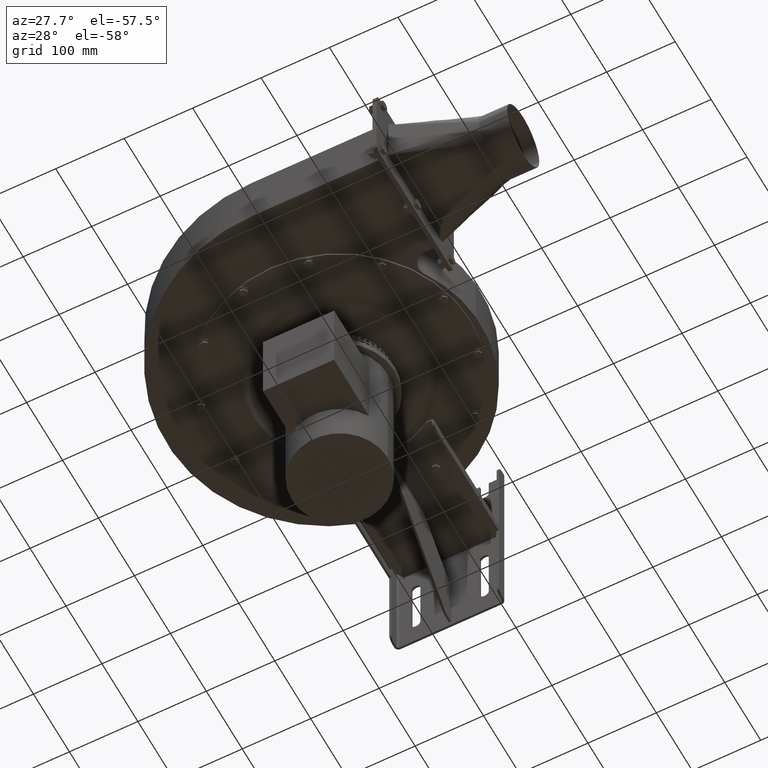
[diagram: clean part render]
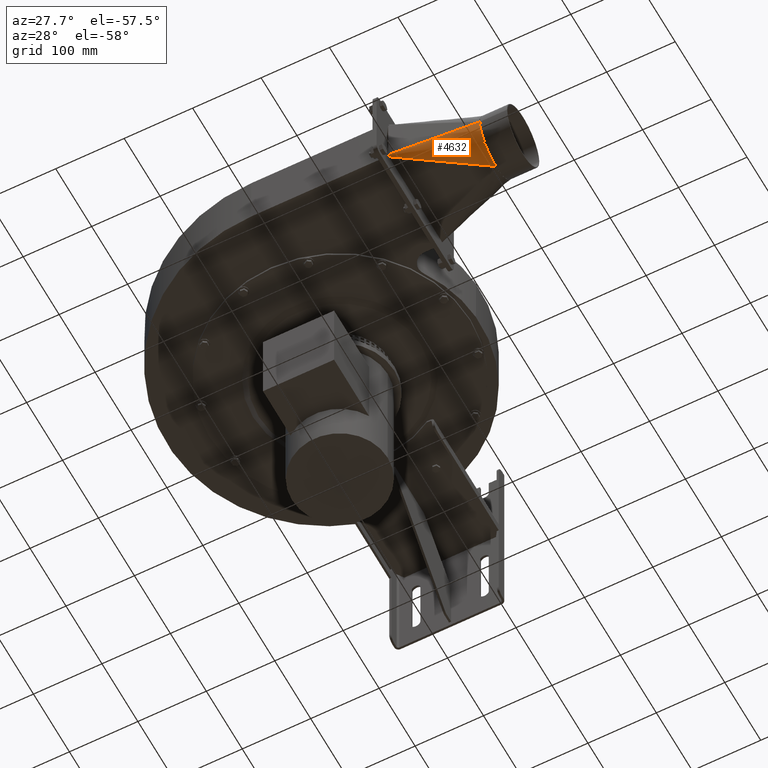
[diagram: same view with one face highlighted and labeled with its STEP entity id]
A machine part, auxiliary view. The second image highlights one B-rep face of the part: STEP entity #4632.
In plain terms, the highlighted face is a freeform B-spline surface patch.
Its self-contained STEP definition (entity closure, byte-faithful):
#4632 = ADVANCED_FACE( '', ( #10331 ), #10332, .T. );
#10331 = FACE_OUTER_BOUND( '', #16926, .T. );
#10332 = B_SPLINE_SURFACE_WITH_KNOTS( '', 3, 3, ( ( #16927, #16928, #16929, #16930, #16931, #16932, #16933, #16934, #16935, #16936 ), ( #16937, #16938, #16939, #16940, #16941, #16942, #16943, #16944, #16945, #16946 ), ( #16947, #16948, #16949, #16950, #16951, #16952, #16953, #16954, #16955, #16956 ), ( #16957, #16958, #16959, #16960, #16961, #16962, #16963, #16964, #16965, #16966 ), ( #16967, #16968, #16969, #16970, #16971, #16972, #16973, #16974, #16975, #16976 ), ( #16977, #16978, #16979, #16980, #16981, #16982, #16983, #16984, #16985, #16986 ), ( #16987, #16988, #16989, #16990, #16991, #16992, #16993, #16994, #16995, #16996 ), ( #16997, #16998, #16999, #17000, #17001, #17002, #17003, #17004, #17005, #17006 ), ( #17007, #17008, #17009, #17010, #17011, #17012, #17013, #17014, #17015, #17016 ), ( #17017, #17018, #17019, #17020, #17021, #17022, #17023, #17024, #17025, #17026 ), ( #17027, #17028, #17029, #17030, #17031, #17032, #17033, #17034, #17035, #17036 ), ( #17037, #17038, #17039, #17040, #17041, #17042, #17043, #17044, #17045, #17046 ), ( #17047, #17048, #17049, #17050, #17051, #17052, #17053, #17054, #17055, #17056 ), ( #17057, #17058, #17059, #17060, #17061, #17062, #17063, #17064, #17065, #17066 ), ( #17067, #17068, #17069, #17070, #17071, #17072, #17073, #17074, #17075, #17076 ), ( #17077, #17078, #17079, #17080, #17081, #17082, #17083, #17084, #17085, #17086 ), ( #17087, #17088, #17089, #17090, #17091, #17092, #17093, #17094, #17095, #17096 ), ( #17097, #17098, #17099, #17100, #17101, #17102, #17103, #17104, #17105, #17106 ), ( #17107, #17108, #17109, #17110, #17111, #17112, #17113, #17114, #17115, #17116 ), ( #17117, #17118, #17119, #17120, #17121, #17122, #17123, #17124, #17125, #17126 ), ( #17127, #17128, #17129, #17130, #17131, #17132, #17133, #17134, #17135, #17136 ) ), .UNSPECIFIED., .F., .F., .F., ( 4, 3, 2, 2, 2, 2, 2, 2, 2, 4 ), ( 4, 3, 3, 4 ), ( -0.000243959590252540, 0.000000000000000, 0.125000000000000, 0.250000000000000, 0.375000000000000, 0.500000000000000, 0.625000000000000, 0.750000000000000, 0.875000000000000, 1.00000000000000 ), ( -0.0101000000000000, 0.000000000000000, 1.00000000000000, 1.01000000000000 ), .UNSPECIFIED. );
#16926 = EDGE_LOOP( '', ( #30209, #30210, #30211, #30212, #30213, #30214, #30215, #30216, #30217, #30218, #30219, #30220, #30221, #30222, #30223, #30224, #30225, #30226, #30227, #30228, #30229 ) );
#16927 = CARTESIAN_POINT( '', ( 75.8080500000000, 35.8579500000000, -1.19180000000000 ) );
#16928 = CARTESIAN_POINT( '', ( 75.7053666666667, 35.7383778565497, -0.794533333333333 ) );
#16929 = CARTESIAN_POINT( '', ( 75.6026833333333, 35.6188057130995, -0.397266666666666 ) );
#16930 = CARTESIAN_POINT( '', ( 75.5000000000000, 35.4992335696493, 0.000000000000000 ) );
#16931 = CARTESIAN_POINT( '', ( 65.3333333333333, 23.6604074854698, 39.3333333333334 ) );
#16932 = CARTESIAN_POINT( '', ( 55.1666666666667, 11.8215814012901, 78.6666666666667 ) );
#16933 = CARTESIAN_POINT( '', ( 45.0000000000000, -0.0172446828894482, 118.000000000000 ) );
#16934 = CARTESIAN_POINT( '', ( 44.8983333333334, -0.135632943731244, 118.393333333333 ) );
#16935 = CARTESIAN_POINT( '', ( 44.7966666666667, -0.254021204573040, 118.786666666667 ) );
#16936 = CARTESIAN_POINT( '', ( 44.6950000000000, -0.372409465414836, 119.180000000000 ) );
#16937 = CARTESIAN_POINT( '', ( 75.8080500000000, 35.8581500000000, -1.19180000000000 ) );
#16938 = CARTESIAN_POINT( '', ( 75.7053666666667, 35.7385963488110, -0.794533333333333 ) );
#16939 = CARTESIAN_POINT( '', ( 75.6026833333333, 35.6190426976219, -0.397266666666666 ) );
#16940 = CARTESIAN_POINT( '', ( 75.5000000000000, 35.4994890464329, 0.000000000000000 ) );
#16941 = CARTESIAN_POINT( '', ( 65.3333333333333, 23.6624938792021, 39.3333333333334 ) );
#16942 = CARTESIAN_POINT( '', ( 55.1666666666667, 11.8254987119712, 78.6666666666667 ) );
#16943 = CARTESIAN_POINT( '', ( 45.0000000000000, -0.0114964552596340, 118.000000000000 ) );
#16944 = CARTESIAN_POINT( '', ( 44.8983333333334, -0.129866406931942, 118.393333333333 ) );
#16945 = CARTESIAN_POINT( '', ( 44.7966666666667, -0.248236358604251, 118.786666666667 ) );
#16946 = CARTESIAN_POINT( '', ( 44.6950000000000, -0.366606310276559, 119.180000000000 ) );
#16947 = CARTESIAN_POINT( '', ( 75.8080500000000, 35.8583500000000, -1.19180000000000 ) );
#16948 = CARTESIAN_POINT( '', ( 75.7053666666667, 35.7388148410721, -0.794533333333333 ) );
#16949 = CARTESIAN_POINT( '', ( 75.6026833333333, 35.6192796821443, -0.397266666666666 ) );
#16950 = CARTESIAN_POINT( '', ( 75.5000000000000, 35.4997445232164, 0.000000000000000 ) );
#16951 = CARTESIAN_POINT( '', ( 65.3333333333333, 23.6645802729344, 39.3333333333334 ) );
#16952 = CARTESIAN_POINT( '', ( 55.1666666666667, 11.8294160226523, 78.6666666666667 ) );
#16953 = CARTESIAN_POINT( '', ( 45.0000000000000, -0.00574822762981975, 118.000000000000 ) );
#16954 = CARTESIAN_POINT( '', ( 44.8983333333334, -0.124099870132641, 118.393333333333 ) );
#16955 = CARTESIAN_POINT( '', ( 44.7966666666667, -0.242451512635461, 118.786666666667 ) );
#16956 = CARTESIAN_POINT( '', ( 44.6950000000000, -0.360803155138282, 119.180000000000 ) );
#16957 = CARTESIAN_POINT( '', ( 75.8080500000000, 35.8585500000000, -1.19180000000000 ) );
#16958 = CARTESIAN_POINT( '', ( 75.7053666666667, 35.7390333333333, -0.794533333333333 ) );
#16959 = CARTESIAN_POINT( '', ( 75.6026833333333, 35.6195166666666, -0.397266666666666 ) );
#16960 = CARTESIAN_POINT( '', ( 75.5000000000000, 35.5000000000000, 0.000000000000000 ) );
#16961 = CARTESIAN_POINT( '', ( 65.3333333333333, 23.6666666666667, 39.3333333333334 ) );
#16962 = CARTESIAN_POINT( '', ( 55.1666666666667, 11.8333333333333, 78.6666666666667 ) );
#16963 = CARTESIAN_POINT( '', ( 45.0000000000000, -5.51091059616309E-015, 118.000000000000 ) );
#16964 = CARTESIAN_POINT( '', ( 44.8983333333334, -0.118333333333339, 118.393333333333 ) );
#16965 = CARTESIAN_POINT( '', ( 44.7966666666667, -0.236666666666672, 118.786666666667 ) );
#16966 = CARTESIAN_POINT( '', ( 44.6950000000000, -0.355000000000005, 119.180000000000 ) );
#16967 = CARTESIAN_POINT( '', ( 75.8080500000000, 35.9610259878229, -1.19180000000000 ) );
#16968 = CARTESIAN_POINT( '', ( 75.7053666666667, 35.8509843848149, -0.794533333333333 ) );
#16969 = CARTESIAN_POINT( '', ( 75.6026833333333, 35.7409427818071, -0.397266666666666 ) );
#16970 = CARTESIAN_POINT( '', ( 75.5000000000000, 35.6309011787991, 0.000000000000000 ) );
#16971 = CARTESIAN_POINT( '', ( 65.3333333333333, 24.7356929601930, 39.3333333333334 ) );
#16972 = CARTESIAN_POINT( '', ( 55.1666666666667, 13.8404847415868, 78.6666666666667 ) );
#16973 = CARTESIAN_POINT( '', ( 45.0000000000000, 2.94527652298063, 118.000000000000 ) );
#16974 = CARTESIAN_POINT( '', ( 44.8983333333334, 2.83632444079457, 118.393333333333 ) );
#16975 = CARTESIAN_POINT( '', ( 44.7966666666667, 2.72737235860851, 118.786666666667 ) );
#16976 = CARTESIAN_POINT( '', ( 44.6950000000000, 2.61842027642244, 119.180000000000 ) );
#16977 = CARTESIAN_POINT( '', ( 75.7979573602072, 36.0634971168466, -1.19180000000000 ) );
#16978 = CARTESIAN_POINT( '', ( 75.6943408482185, 35.9629301282464, -0.794533333333333 ) );
#16979 = CARTESIAN_POINT( '', ( 75.5907243362298, 35.8623631396463, -0.397266666666666 ) );
#16980 = CARTESIAN_POINT( '', ( 75.4871078242411, 35.7617961510462, 0.000000000000000 ) );
#16981 = CARTESIAN_POINT( '', ( 65.2280472313027, 25.8046685668778, 39.3333333333334 ) );
#16982 = CARTESIAN_POINT( '', ( 54.9689866383642, 15.8475409827094, 78.6666666666667 ) );
#16983 = CARTESIAN_POINT( '', ( 44.7099260454257, 5.89041339854095, 118.000000000000 ) );
#16984 = CARTESIAN_POINT( '', ( 44.6073354394963, 5.79084212269927, 118.393333333333 ) );
#16985 = CARTESIAN_POINT( '', ( 44.5047448335670, 5.69127084685758, 118.786666666667 ) );
#16986 = CARTESIAN_POINT( '', ( 44.4021542276376, 5.59169957101590, 119.180000000000 ) );
#16987 = CARTESIAN_POINT( '', ( 75.7579736668475, 36.2645087175147, -1.19180000000000 ) );
#16988 = CARTESIAN_POINT( '', ( 75.6506602103556, 36.1825275240159, -0.794533333333333 ) );
#16989 = CARTESIAN_POINT( '', ( 75.5433467538637, 36.1005463305170, -0.397266666666666 ) );
#16990 = CARTESIAN_POINT( '', ( 75.4360332973718, 36.0185651370183, 0.000000000000000 ) );
#16991 = CARTESIAN_POINT( '', ( 64.8109385952029, 27.9016152856490, 39.3333333333334 ) );
#16992 = CARTESIAN_POINT( '', ( 54.1858438930340, 19.7846654342798, 78.6666666666667 ) );
#16993 = CARTESIAN_POINT( '', ( 43.5607491908650, 11.6677155829106, 118.000000000000 ) );
#16994 = CARTESIAN_POINT( '', ( 43.4544982438433, 11.5865460843969, 118.393333333333 ) );
#16995 = CARTESIAN_POINT( '', ( 43.3482472968216, 11.5053765858832, 118.786666666667 ) );
#16996 = CARTESIAN_POINT( '', ( 43.2419963498000, 11.4242070873695, 119.180000000000 ) );
#16997 = CARTESIAN_POINT( '', ( 75.7280836019562, 36.3630430562976, -1.19180000000000 ) );
#16998 = CARTESIAN_POINT( '', ( 75.6180064710307, 36.2901724764399, -0.794533333333333 ) );
#16999 = CARTESIAN_POINT( '', ( 75.5079293401051, 36.2173018965821, -0.397266666666666 ) );
#17000 = CARTESIAN_POINT( '', ( 75.3978522091796, 36.1444313167244, 0.000000000000000 ) );
#17001 = CARTESIAN_POINT( '', ( 64.4991263749667, 28.9295224199156, 39.3333333333334 ) );
#17002 = CARTESIAN_POINT( '', ( 53.6004005407539, 21.7146135231070, 78.6666666666667 ) );
#17003 = CARTESIAN_POINT( '', ( 42.7016747065410, 14.4997046262983, 118.000000000000 ) );
#17004 = CARTESIAN_POINT( '', ( 42.5926874481990, 14.4275555373302, 118.393333333333 ) );
#17005 = CARTESIAN_POINT( '', ( 42.4837001898568, 14.3554064483621, 118.786666666667 ) );
#17006 = CARTESIAN_POINT( '', ( 42.3747129315147, 14.2832573593940, 119.180000000000 ) );
#17007 = CARTESIAN_POINT( '', ( 75.6496527661496, 36.5523918438104, -1.19180000000000 ) );
#17008 = CARTESIAN_POINT( '', ( 75.5323238177216, 36.4970287001189, -0.794533333333333 ) );
#17009 = CARTESIAN_POINT( '', ( 75.4149948692935, 36.4416655564275, -0.397266666666666 ) );
#17010 = CARTESIAN_POINT( '', ( 75.2976659208655, 36.3863024127360, 0.000000000000000 ) );
#17011 = CARTESIAN_POINT( '', ( 63.6809383537353, 30.9048030373439, 39.3333333333334 ) );
#17012 = CARTESIAN_POINT( '', ( 52.0642107866050, 25.4233036619518, 78.6666666666667 ) );
#17013 = CARTESIAN_POINT( '', ( 40.4474832194747, 19.9418042865597, 118.000000000000 ) );
#17014 = CARTESIAN_POINT( '', ( 40.3313159438034, 19.8869892928058, 118.393333333333 ) );
#17015 = CARTESIAN_POINT( '', ( 40.2151486681322, 19.8321742990519, 118.786666666667 ) );
#17016 = CARTESIAN_POINT( '', ( 40.0989813924609, 19.7773593052980, 119.180000000000 ) );
#17017 = CARTESIAN_POINT( '', ( 75.6011139345911, 36.6432016105182, -1.19180000000000 ) );
#17018 = CARTESIAN_POINT( '', ( 75.4792970224098, 36.5962348564461, -0.794533333333333 ) );
#17019 = CARTESIAN_POINT( '', ( 75.3574801102284, 36.5492681023741, -0.397266666666666 ) );
#17020 = CARTESIAN_POINT( '', ( 75.2356631980471, 36.5023013483020, 0.000000000000000 ) );
#17021 = CARTESIAN_POINT( '', ( 63.1745827840511, 31.8521276777997, 39.3333333333334 ) );
#17022 = CARTESIAN_POINT( '', ( 51.1135023700551, 27.2019540072973, 78.6666666666667 ) );
#17023 = CARTESIAN_POINT( '', ( 39.0524219560591, 22.5517803367951, 118.000000000000 ) );
#17024 = CARTESIAN_POINT( '', ( 38.9318111519191, 22.5052786000901, 118.393333333333 ) );
#17025 = CARTESIAN_POINT( '', ( 38.8112003477792, 22.4587768633850, 118.786666666667 ) );
#17026 = CARTESIAN_POINT( '', ( 38.6905895436392, 22.4122751266800, 119.180000000000 ) );
#17027 = CARTESIAN_POINT( '', ( 75.4872500093730, 36.8136110171594, -1.19180000000000 ) );
#17028 = CARTESIAN_POINT( '', ( 75.3549050899697, 36.7824005393650, -0.794533333333333 ) );
#17029 = CARTESIAN_POINT( '', ( 75.2225601705664, 36.7511900615707, -0.397266666666666 ) );
#17030 = CARTESIAN_POINT( '', ( 75.0902152511631, 36.7199795837764, 0.000000000000000 ) );
#17031 = CARTESIAN_POINT( '', ( 61.9867578844987, 33.6298332675073, 39.3333333333334 ) );
#17032 = CARTESIAN_POINT( '', ( 48.8833005178343, 30.5396869512382, 78.6666666666667 ) );
#17033 = CARTESIAN_POINT( '', ( 35.7798431511699, 27.4495406349691, 118.000000000000 ) );
#17034 = CARTESIAN_POINT( '', ( 35.6488085775033, 27.4186391718064, 118.393333333333 ) );
#17035 = CARTESIAN_POINT( '', ( 35.5177740038367, 27.3877377086438, 118.786666666667 ) );
#17036 = CARTESIAN_POINT( '', ( 35.3867394301700, 27.3568362454811, 119.180000000000 ) );
#17037 = CARTESIAN_POINT( '', ( 75.4219277312233, 36.8932064433843, -1.19180000000000 ) );
#17038 = CARTESIAN_POINT( '', ( 75.2835430286771, 36.8693554626433, -0.794533333333333 ) );
#17039 = CARTESIAN_POINT( '', ( 75.1451583261309, 36.8455044819024, -0.397266666666666 ) );
#17040 = CARTESIAN_POINT( '', ( 75.0067736235847, 36.8216535011615, 0.000000000000000 ) );
#17041 = CARTESIAN_POINT( '', ( 61.3053179259419, 34.4601702594853, 39.3333333333334 ) );
#17042 = CARTESIAN_POINT( '', ( 47.6038622282992, 32.0986870178091, 78.6666666666667 ) );
#17043 = CARTESIAN_POINT( '', ( 33.9024065306564, 29.7372037761329, 118.000000000000 ) );
#17044 = CARTESIAN_POINT( '', ( 33.7653919736799, 29.7135889437162, 118.393333333333 ) );
#17045 = CARTESIAN_POINT( '', ( 33.6283774167035, 29.6899741112994, 118.786666666667 ) );
#17046 = CARTESIAN_POINT( '', ( 33.4913628597271, 29.6663592788826, 119.180000000000 ) );
#17047 = CARTESIAN_POINT( '', ( 75.2770064433842, 37.0381277312233, -1.19180000000000 ) );
#17048 = CARTESIAN_POINT( '', ( 75.1252221293100, 37.0276763620104, -0.794533333333333 ) );
#17049 = CARTESIAN_POINT( '', ( 74.9734378152357, 37.0172249927975, -0.397266666666666 ) );
#17050 = CARTESIAN_POINT( '', ( 74.8216535011614, 37.0067736235847, 0.000000000000000 ) );
#17051 = CARTESIAN_POINT( '', ( 59.7935035928186, 35.9719845926086, 39.3333333333334 ) );
#17052 = CARTESIAN_POINT( '', ( 44.7653536844758, 34.9371955616325, 78.6666666666667 ) );
#17053 = CARTESIAN_POINT( '', ( 29.7372037761329, 33.9024065306564, 118.000000000000 ) );
#17054 = CARTESIAN_POINT( '', ( 29.5869222770495, 33.8920586403466, 118.393333333333 ) );
#17055 = CARTESIAN_POINT( '', ( 29.4366407779660, 33.8817107500368, 118.786666666667 ) );
#17056 = CARTESIAN_POINT( '', ( 29.2863592788826, 33.8713628597271, 119.180000000000 ) );
#17057 = CARTESIAN_POINT( '', ( 75.1974110171593, 37.1034500093731, -1.19180000000000 ) );
#17058 = CARTESIAN_POINT( '', ( 75.0382672060317, 37.0990384233031, -0.794533333333333 ) );
#17059 = CARTESIAN_POINT( '', ( 74.8791233949040, 37.0946268372331, -0.397266666666666 ) );
#17060 = CARTESIAN_POINT( '', ( 74.7199795837764, 37.0902152511631, 0.000000000000000 ) );
#17061 = CARTESIAN_POINT( '', ( 58.9631666008406, 36.6534245511654, 39.3333333333334 ) );
#17062 = CARTESIAN_POINT( '', ( 43.2063536179049, 36.2166338511677, 78.6666666666667 ) );
#17063 = CARTESIAN_POINT( '', ( 27.4495406349691, 35.7798431511699, 118.000000000000 ) );
#17064 = CARTESIAN_POINT( '', ( 27.2919725051398, 35.7754752441699, 118.393333333333 ) );
#17065 = CARTESIAN_POINT( '', ( 27.1344043753104, 35.7711073371700, 118.786666666667 ) );
#17066 = CARTESIAN_POINT( '', ( 26.9768362454811, 35.7667394301700, 119.180000000000 ) );
#17067 = CARTESIAN_POINT( '', ( 75.0270016105182, 37.2173139345911, -1.19180000000000 ) );
#17068 = CARTESIAN_POINT( '', ( 74.8521015231128, 37.2234303557431, -0.794533333333333 ) );
#17069 = CARTESIAN_POINT( '', ( 74.6772014357074, 37.2295467768951, -0.397266666666666 ) );
#17070 = CARTESIAN_POINT( '', ( 74.5023013483020, 37.2356631980471, 0.000000000000000 ) );
#17071 = CARTESIAN_POINT( '', ( 57.1854610111330, 37.8412494507177, 39.3333333333334 ) );
#17072 = CARTESIAN_POINT( '', ( 39.8686206739641, 38.4468357033884, 78.6666666666667 ) );
#17073 = CARTESIAN_POINT( '', ( 22.5517803367951, 39.0524219560591, 118.000000000000 ) );
#17074 = CARTESIAN_POINT( '', ( 22.3786119334234, 39.0584778185858, 118.393333333333 ) );
#17075 = CARTESIAN_POINT( '', ( 22.2054435300518, 39.0645336811125, 118.786666666667 ) );
#17076 = CARTESIAN_POINT( '', ( 22.0322751266800, 39.0705895436392, 119.180000000000 ) );
#17077 = CARTESIAN_POINT( '', ( 74.9361918438104, 37.2658527661496, -1.19180000000000 ) );
#17078 = CARTESIAN_POINT( '', ( 74.7528953667856, 37.2764571510549, -0.794533333333333 ) );
#17079 = CARTESIAN_POINT( '', ( 74.5695988897608, 37.2870615359602, -0.397266666666666 ) );
#17080 = CARTESIAN_POINT( '', ( 74.3863024127360, 37.2976659208655, 0.000000000000000 ) );
#17081 = CARTESIAN_POINT( '', ( 56.2381363706772, 38.3476050204020, 39.3333333333334 ) );
#17082 = CARTESIAN_POINT( '', ( 38.0899703286185, 39.3975441199384, 78.6666666666667 ) );
#17083 = CARTESIAN_POINT( '', ( 19.9418042865597, 40.4474832194747, 118.000000000000 ) );
#17084 = CARTESIAN_POINT( '', ( 19.7603226261392, 40.4579826104701, 118.393333333333 ) );
#17085 = CARTESIAN_POINT( '', ( 19.5788409657186, 40.4684820014655, 118.786666666667 ) );
#17086 = CARTESIAN_POINT( '', ( 19.3973593052980, 40.4789813924609, 119.180000000000 ) );
#17087 = CARTESIAN_POINT( '', ( 74.7468430562977, 37.3442836019562, -1.19180000000000 ) );
#17088 = CARTESIAN_POINT( '', ( 74.5460391431066, 37.3621398043640, -0.794533333333333 ) );
#17089 = CARTESIAN_POINT( '', ( 74.3452352299155, 37.3799960067718, -0.397266666666666 ) );
#17090 = CARTESIAN_POINT( '', ( 74.1444313167244, 37.3978522091796, 0.000000000000000 ) );
#17091 = CARTESIAN_POINT( '', ( 54.2628557532490, 39.1657930416334, 39.3333333333334 ) );
#17092 = CARTESIAN_POINT( '', ( 34.3812801897736, 40.9337338740872, 78.6666666666667 ) );
#17093 = CARTESIAN_POINT( '', ( 14.4997046262983, 42.7016747065410, 118.000000000000 ) );
#17094 = CARTESIAN_POINT( '', ( 14.3008888706636, 42.7193541148656, 118.393333333333 ) );
#17095 = CARTESIAN_POINT( '', ( 14.1020731150288, 42.7370335231901, 118.786666666667 ) );
#17096 = CARTESIAN_POINT( '', ( 13.9032573593940, 42.7547129315147, 119.180000000000 ) );
#17097 = CARTESIAN_POINT( '', ( 74.6483087175147, 37.3741736668475, -1.19180000000000 ) );
#17098 = CARTESIAN_POINT( '', ( 74.4383941906826, 37.3947935436889, -0.794533333333333 ) );
#17099 = CARTESIAN_POINT( '', ( 74.2284796638504, 37.4154134205303, -0.397266666666666 ) );
#17100 = CARTESIAN_POINT( '', ( 74.0185651370182, 37.4360332973718, 0.000000000000000 ) );
#17101 = CARTESIAN_POINT( '', ( 53.2349486189824, 39.4776052618695, 39.3333333333334 ) );
#17102 = CARTESIAN_POINT( '', ( 32.4513321009465, 41.5191772263673, 78.6666666666667 ) );
#17103 = CARTESIAN_POINT( '', ( 11.6677155829106, 43.5607491908650, 118.000000000000 ) );
#17104 = CARTESIAN_POINT( '', ( 11.4598794177302, 43.5811649105100, 118.393333333333 ) );
#17105 = CARTESIAN_POINT( '', ( 11.2520432525499, 43.6015806301550, 118.786666666667 ) );
#17106 = CARTESIAN_POINT( '', ( 11.0442070873695, 43.6219963498000, 119.180000000000 ) );
#17107 = CARTESIAN_POINT( '', ( 74.4472971168465, 37.4141573602071, -1.19180000000000 ) );
#17108 = CARTESIAN_POINT( '', ( 74.2187967949131, 37.4384741815518, -0.794533333333333 ) );
#17109 = CARTESIAN_POINT( '', ( 73.9902964729797, 37.4627910028965, -0.397266666666666 ) );
#17110 = CARTESIAN_POINT( '', ( 73.7617961510463, 37.4871078242411, 0.000000000000000 ) );
#17111 = CARTESIAN_POINT( '', ( 51.1380019002112, 39.8947138979693, 39.3333333333334 ) );
#17112 = CARTESIAN_POINT( '', ( 28.5142076493761, 42.3023199716975, 78.6666666666667 ) );
#17113 = CARTESIAN_POINT( '', ( 5.89041339854098, 44.7099260454257, 118.000000000000 ) );
#17114 = CARTESIAN_POINT( '', ( 5.66417545603263, 44.7340021061630, 118.393333333333 ) );
#17115 = CARTESIAN_POINT( '', ( 5.43793751352428, 44.7580781669002, 118.786666666667 ) );
#17116 = CARTESIAN_POINT( '', ( 5.21169957101593, 44.7821542276376, 119.180000000000 ) );
#17117 = CARTESIAN_POINT( '', ( 74.3448259878229, 37.4242500000000, -1.19180000000000 ) );
#17118 = CARTESIAN_POINT( '', ( 74.1068510514816, 37.4495000000000, -0.794533333333333 ) );
#17119 = CARTESIAN_POINT( '', ( 73.8688761151403, 37.4747500000000, -0.397266666666666 ) );
#17120 = CARTESIAN_POINT( '', ( 73.6309011787991, 37.5000000000000, 0.000000000000000 ) );
#17121 = CARTESIAN_POINT( '', ( 50.0690262935263, 40.0000000000000, 39.3333333333334 ) );
#17122 = CARTESIAN_POINT( '', ( 26.5071514082535, 42.5000000000000, 78.6666666666667 ) );
#17123 = CARTESIAN_POINT( '', ( 2.94527652298059, 45.0000000000000, 118.000000000000 ) );
#17124 = CARTESIAN_POINT( '', ( 2.70965777412786, 45.0250000000000, 118.393333333333 ) );
#17125 = CARTESIAN_POINT( '', ( 2.47403902527514, 45.0500000000000, 118.786666666667 ) );
#17126 = CARTESIAN_POINT( '', ( 2.23842027642241, 45.0750000000000, 119.180000000000 ) );
#17127 = CARTESIAN_POINT( '', ( 74.2423500000000, 37.4242500000000, -1.19180000000000 ) );
#17128 = CARTESIAN_POINT( '', ( 73.9949000000000, 37.4495000000000, -0.794533333333333 ) );
#17129 = CARTESIAN_POINT( '', ( 73.7474500000000, 37.4747500000000, -0.397266666666666 ) );
#17130 = CARTESIAN_POINT( '', ( 73.5000000000000, 37.5000000000000, 0.000000000000000 ) );
#17131 = CARTESIAN_POINT( '', ( 49.0000000000000, 40.0000000000000, 39.3333333333334 ) );
#17132 = CARTESIAN_POINT( '', ( 24.5000000000000, 42.5000000000000, 78.6666666666667 ) );
#17133 = CARTESIAN_POINT( '', ( 8.23993651088983E-015, 45.0000000000000, 118.000000000000 ) );
#17134 = CARTESIAN_POINT( '', ( -0.244999999999991, 45.0250000000000, 118.393333333333 ) );
#17135 = CARTESIAN_POINT( '', ( -0.489999999999992, 45.0500000000000, 118.786666666667 ) );
#17136 = CARTESIAN_POINT( '', ( -0.734999999999991, 45.0750000000000, 119.180000000000 ) );
#30209 = ORIENTED_EDGE( '', *, *, #37626, .F. );
#30210 = ORIENTED_EDGE( '', *, *, #39318, .F. );
#30211 = ORIENTED_EDGE( '', *, *, #37898, .T. );
#30212 = ORIENTED_EDGE( '', *, *, #39828, .T. );
#30213 = ORIENTED_EDGE( '', *, *, #35496, .T. );
#30214 = ORIENTED_EDGE( '', *, *, #39237, .F. );
#30215 = ORIENTED_EDGE( '', *, *, #39829, .F. );
#30216 = ORIENTED_EDGE( '', *, *, #39001, .F. );
#30217 = ORIENTED_EDGE( '', *, *, #39817, .T. );
#30218 = ORIENTED_EDGE( '', *, *, #39409, .F. );
#30219 = ORIENTED_EDGE( '', *, *, #38927, .F. );
#30220 = ORIENTED_EDGE( '', *, *, #39723, .T. );
#30221 = ORIENTED_EDGE( '', *, *, #39830, .F. );
#30222 = ORIENTED_EDGE( '', *, *, #39382, .F. );
#30223 = ORIENTED_EDGE( '', *, *, #39705, .T. );
#30224 = ORIENTED_EDGE( '', *, *, #38016, .F. );
#30225 = ORIENTED_EDGE( '', *, *, #36185, .F. );
#30226 = ORIENTED_EDGE( '', *, *, #37134, .T. );
#30227 = ORIENTED_EDGE( '', *, *, #39073, .F. );
#30228 = ORIENTED_EDGE( '', *, *, #39171, .F. );
#30229 = ORIENTED_EDGE( '', *, *, #39831, .T. );
#35496 = EDGE_CURVE( '', #42040, #42044, #42046, .T. );
#36185 = EDGE_CURVE( '', #43215, #43211, #43217, .T. );
#37134 = EDGE_CURVE( '', #43215, #44849, #44851, .T. );
#37626 = EDGE_CURVE( '', #45628, #45630, #45631, .T. );
#37898 = EDGE_CURVE( '', #46025, #41999, #46028, .T. );
#38016 = EDGE_CURVE( '', #43211, #46201, #46204, .T. );
#38927 = EDGE_CURVE( '', #47548, #47544, #47550, .T. );
#39001 = EDGE_CURVE( '', #47643, #47639, #47645, .T. );
#39073 = EDGE_CURVE( '', #47740, #44849, #47742, .T. );
#39171 = EDGE_CURVE( '', #47865, #47740, #47867, .T. );
#39237 = EDGE_CURVE( '', #47947, #42044, #47949, .T. );
#39318 = EDGE_CURVE( '', #46025, #45628, #48051, .T. );
#39382 = EDGE_CURVE( '', #48126, #48122, #48128, .T. );
#39409 = EDGE_CURVE( '', #47544, #48155, #48158, .T. );
#39705 = EDGE_CURVE( '', #48126, #46201, #48515, .T. );
#39723 = EDGE_CURVE( '', #47548, #48533, #48535, .T. );
#39817 = EDGE_CURVE( '', #47643, #48155, #48643, .T. );
#39828 = EDGE_CURVE( '', #41999, #42040, #48655, .T. );
#39829 = EDGE_CURVE( '', #47639, #47947, #48656, .T. );
#39830 = EDGE_CURVE( '', #48122, #48533, #48657, .T. );
#39831 = EDGE_CURVE( '', #47865, #45630, #48658, .T. );
#41999 = VERTEX_POINT( '', #51444 );
#42040 = VERTEX_POINT( '', #51502 );
#42044 = VERTEX_POINT( '', #51510 );
#42046 = B_SPLINE_CURVE_WITH_KNOTS( '', 3, ( #51513, #51514, #51515, #51516 ), .UNSPECIFIED., .F., .F., ( 4, 4 ), ( 0.000000000000000, 1.00000000000000 ), .UNSPECIFIED. );
#43211 = VERTEX_POINT( '', #53651 );
#43215 = VERTEX_POINT( '', #53659 );
#43217 = B_SPLINE_CURVE_WITH_KNOTS( '', 3, ( #53662, #53663, #53664, #53665 ), .UNSPECIFIED., .F., .F., ( 4, 4 ), ( 0.000000000000000, 1.00000000000000 ), .UNSPECIFIED. );
#44849 = VERTEX_POINT( '', #56112 );
#44851 = B_SPLINE_CURVE_WITH_KNOTS( '', 3, ( #56115, #56116, #56117, #56118 ), .UNSPECIFIED., .F., .F., ( 4, 4 ), ( 0.000000000000000, 1.00000000000000 ), .UNSPECIFIED. );
#45628 = VERTEX_POINT( '', #57422 );
#45630 = VERTEX_POINT( '', #57425 );
#45631 = B_SPLINE_CURVE_WITH_KNOTS( '', 1, ( #57426, #57427 ), .UNSPECIFIED., .F., .F., ( 2, 2 ), ( 0.00200288157160666, 1.00000000000000 ), .UNSPECIFIED. );
#46025 = VERTEX_POINT( '', #58089 );
#46028 = B_SPLINE_CURVE_WITH_KNOTS( '', 3, ( #58102, #58103, #58104, #58105, #58106, #58107, #58108, #58109, #58110, #58111 ), .UNSPECIFIED., .F., .F., ( 4, 2, 2, 2, 4 ), ( 0.000000000000000, 0.250000000000000, 0.500000000000000, 0.750000000000000, 1.00000000000000 ), .UNSPECIFIED. );
#46201 = VERTEX_POINT( '', #58421 );
#46204 = B_SPLINE_CURVE_WITH_KNOTS( '', 3, ( #58428, #58429, #58430, #58431 ), .UNSPECIFIED., .F., .F., ( 4, 4 ), ( 0.000000000000000, 1.00000000000000 ), .UNSPECIFIED. );
#47544 = VERTEX_POINT( '', #60642 );
#47548 = VERTEX_POINT( '', #60650 );
#47550 = B_SPLINE_CURVE_WITH_KNOTS( '', 3, ( #60653, #60654, #60655, #60656 ), .UNSPECIFIED., .F., .F., ( 4, 4 ), ( 0.000000000000000, 1.00000000000000 ), .UNSPECIFIED. );
#47639 = VERTEX_POINT( '', #60797 );
#47643 = VERTEX_POINT( '', #60805 );
#47645 = B_SPLINE_CURVE_WITH_KNOTS( '', 3, ( #60808, #60809, #60810, #60811 ), .UNSPECIFIED., .F., .F., ( 4, 4 ), ( 3.87391259067712E-006, 1.00000000000000 ), .UNSPECIFIED. );
#47740 = VERTEX_POINT( '', #61042 );
#47742 = B_SPLINE_CURVE_WITH_KNOTS( '', 3, ( #61045, #61046, #61047, #61048 ), .UNSPECIFIED., .F., .F., ( 4, 4 ), ( 0.000000000000000, 1.00000000000000 ), .UNSPECIFIED. );
#47865 = VERTEX_POINT( '', #61251 );
#47867 = B_SPLINE_CURVE_WITH_KNOTS( '', 3, ( #61254, #61255, #61256, #61257 ), .UNSPECIFIED., .F., .F., ( 4, 4 ), ( 0.000000000000000, 1.00000000000000 ), .UNSPECIFIED. );
#47947 = VERTEX_POINT( '', #61385 );
#47949 = B_SPLINE_CURVE_WITH_KNOTS( '', 3, ( #61388, #61389, #61390, #61391 ), .UNSPECIFIED., .F., .F., ( 4, 4 ), ( 0.000000000000000, 1.00000000000000 ), .UNSPECIFIED. );
#48051 = B_SPLINE_CURVE_WITH_KNOTS( '', 3, ( #61608, #61609, #61610, #61611 ), .UNSPECIFIED., .F., .F., ( 4, 4 ), ( 0.000000000000000, 1.00000000000000 ), .UNSPECIFIED. );
#48122 = VERTEX_POINT( '', #61776 );
#48126 = VERTEX_POINT( '', #61784 );
#48128 = B_SPLINE_CURVE_WITH_KNOTS( '', 3, ( #61787, #61788, #61789, #61790 ), .UNSPECIFIED., .F., .F., ( 4, 4 ), ( 0.000000000000000, 1.00000000000000 ), .UNSPECIFIED. );
#48155 = VERTEX_POINT( '', #61825 );
#48158 = B_SPLINE_CURVE_WITH_KNOTS( '', 3, ( #61832, #61833, #61834, #61835 ), .UNSPECIFIED., .F., .F., ( 4, 4 ), ( 0.000000000000000, 1.00000000000000 ), .UNSPECIFIED. );
#48515 = B_SPLINE_CURVE_WITH_KNOTS( '', 3, ( #62454, #62455, #62456, #62457, #62458, #62459 ), .UNSPECIFIED., .F., .F., ( 4, 2, 4 ), ( 0.000000000000000, 0.654425162113925, 1.00000000000000 ), .UNSPECIFIED. );
#48533 = VERTEX_POINT( '', #62487 );
#48535 = B_SPLINE_CURVE_WITH_KNOTS( '', 3, ( #62510, #62511, #62512, #62513, #62514, #62515 ), .UNSPECIFIED., .F., .F., ( 4, 2, 4 ), ( 0.000000000000000, 0.357254318589830, 1.00000000000000 ), .UNSPECIFIED. );
#48643 = B_SPLINE_CURVE_WITH_KNOTS( '', 3, ( #63033, #63034, #63035, #63036 ), .UNSPECIFIED., .F., .F., ( 4, 4 ), ( 0.000000000000000, 1.00000000000000 ), .UNSPECIFIED. );
#48655 = B_SPLINE_CURVE_WITH_KNOTS( '', 3, ( #63052, #63053, #63054, #63055 ), .UNSPECIFIED., .F., .F., ( 4, 4 ), ( 0.000000000000000, 1.00000000000000 ), .UNSPECIFIED. );
#48656 = B_SPLINE_CURVE_WITH_KNOTS( '', 3, ( #63056, #63057, #63058, #63059 ), .UNSPECIFIED., .F., .F., ( 4, 4 ), ( 0.000000000000000, 1.00000000000000 ), .UNSPECIFIED. );
#48657 = B_SPLINE_CURVE_WITH_KNOTS( '', 3, ( #63060, #63061, #63062, #63063 ), .UNSPECIFIED., .F., .F., ( 4, 4 ), ( 0.000000000000000, 1.00000000000000 ), .UNSPECIFIED. );
#48658 = B_SPLINE_CURVE_WITH_KNOTS( '', 3, ( #63064, #63065, #63066, #63067 ), .UNSPECIFIED., .F., .F., ( 4, 4 ), ( 0.000000000000000, 1.00000000000000 ), .UNSPECIFIED. );
#51444 = CARTESIAN_POINT( '', ( 73.5000000015708, 37.5000000000000, 0.000000000000000 ) );
#51502 = CARTESIAN_POINT( '', ( -1.11022302462516E-013, 45.0000000000000, 118.000000000000 ) );
#51510 = CARTESIAN_POINT( '', ( 6.06152418726983, 44.5897515462742, 118.000330781699 ) );
#51513 = CARTESIAN_POINT( '', ( 8.23993651088983E-015, 45.0000000000000, 118.000000000000 ) );
#51514 = CARTESIAN_POINT( '', ( 2.02668906219893, 45.0000070080869, 118.000110260567 ) );
#51515 = CARTESIAN_POINT( '', ( 4.05331744190193, 44.8626540198039, 118.000220521135 ) );
#51516 = CARTESIAN_POINT( '', ( 6.06152424724917, 44.5897515381235, 118.000330781702 ) );
#53651 = CARTESIAN_POINT( '', ( 40.5234303277431, 20.5730379237594, 116.634377183575 ) );
#53659 = CARTESIAN_POINT( '', ( 40.6060674046547, 19.3942517144081, 118.000020006995 ) );
#53662 = CARTESIAN_POINT( '', ( 40.6060674079299, 19.3942516627496, 118.000020065994 ) );
#53663 = CARTESIAN_POINT( '', ( 40.5807964034558, 19.7928321477027, 117.544805730824 ) );
#53664 = CARTESIAN_POINT( '', ( 40.5531882351881, 20.1857713702443, 117.089591438998 ) );
#53665 = CARTESIAN_POINT( '', ( 40.5234303277431, 20.5730379237594, 116.634377183575 ) );
#56112 = CARTESIAN_POINT( '', ( 44.2354292737459, 8.26044475952630, 117.999672470317 ) );
#56115 = CARTESIAN_POINT( '', ( 40.6060674028758, 19.3942516690988, 118.000020071566 ) );
#56116 = CARTESIAN_POINT( '', ( 42.2934292802643, 15.8620021885156, 117.999904204482 ) );
#56117 = CARTESIAN_POINT( '', ( 43.5169441510643, 12.1084937201712, 117.999788337399 ) );
#56118 = CARTESIAN_POINT( '', ( 44.2354292842850, 8.26044470308098, 117.999672470316 ) );
#57422 = CARTESIAN_POINT( '', ( 75.4389121125142, 35.4288977063680, 0.236340023715806 ) );
#57425 = CARTESIAN_POINT( '', ( 45.0000000000000, -5.51091059616309E-015, 118.000000000000 ) );
#57426 = CARTESIAN_POINT( '', ( 75.4389121120660, 35.4288977042080, 0.236340025449613 ) );
#57427 = CARTESIAN_POINT( '', ( 45.0000000000000, -1.38777878078145E-014, 118.000000000000 ) );
#58089 = CARTESIAN_POINT( '', ( 75.4885494582934, 35.7137721619352, -5.02570229088494E-005 ) );
#58102 = CARTESIAN_POINT( '', ( 75.4885494643967, 35.7137722423121, -5.03080854511404E-005 ) );
#58103 = CARTESIAN_POINT( '', ( 75.4624785633811, 35.9563229362721, -4.61157449968786E-005 ) );
#58104 = CARTESIAN_POINT( '', ( 75.3915485287175, 36.1939806566611, -4.19234045426170E-005 ) );
#58105 = CARTESIAN_POINT( '', ( 75.1692614010284, 36.6283020949909, -3.35387236340935E-005 ) );
#58106 = CARTESIAN_POINT( '', ( 75.0180036690720, 36.8248580133226, -2.93463831798319E-005 ) );
#58107 = CARTESIAN_POINT( '', ( 74.6550154763528, 37.1508774815604, -2.09617022713085E-005 ) );
#58108 = CARTESIAN_POINT( '', ( 74.4434437216493, 37.2803047164518, -1.67693618170468E-005 ) );
#58109 = CARTESIAN_POINT( '', ( 73.9878317708968, 37.4548594166118, -8.38468090852339E-006 ) );
#58110 = CARTESIAN_POINT( '', ( 73.7439573996654, 37.4999997335377, -4.19234045426170E-006 ) );
#58111 = CARTESIAN_POINT( '', ( 73.5000000000000, 37.5000000000000, 0.000000000000000 ) );
#58421 = CARTESIAN_POINT( '', ( 39.5682243328835, 21.4322249969381, 117.999992798307 ) );
#58428 = CARTESIAN_POINT( '', ( 40.5234303277525, 20.5730379237480, 116.634377183565 ) );
#58429 = CARTESIAN_POINT( '', ( 40.2115664119717, 20.8579285849246, 117.089582340431 ) );
#58430 = CARTESIAN_POINT( '', ( 39.8931937257629, 21.1443901712686, 117.544787543605 ) );
#58431 = CARTESIAN_POINT( '', ( 39.5682243631742, 21.4322249394340, 117.999992800611 ) );
#60642 = CARTESIAN_POINT( '', ( 21.2202740957192, 39.9880910587186, 116.584437199208 ) );
#60650 = CARTESIAN_POINT( '', ( 21.3472860965489, 39.6141104507063, 118.000000043744 ) );
#60653 = CARTESIAN_POINT( '', ( 21.3472861020647, 39.6141104345606, 118.000000102937 ) );
#60654 = CARTESIAN_POINT( '', ( 21.3033177327022, 39.7428174789298, 117.528145791296 ) );
#60655 = CARTESIAN_POINT( '', ( 21.2609493172713, 39.8674576294753, 117.056291493892 ) );
#60656 = CARTESIAN_POINT( '', ( 21.2202740957193, 39.9880910587186, 116.584437199208 ) );
#60797 = CARTESIAN_POINT( '', ( 8.01273461550605, 44.2815402659253, 117.984213310758 ) );
#60805 = CARTESIAN_POINT( '', ( 8.35374001828915, 44.2178006481376, 118.000140892069 ) );
#60808 = CARTESIAN_POINT( '', ( 8.35374001828915, 44.2178006481376, 118.000140892069 ) );
#60809 = CARTESIAN_POINT( '', ( 8.24014240683156, 44.2395119330223, 117.994831718545 ) );
#60810 = CARTESIAN_POINT( '', ( 8.12647270302266, 44.2607585325992, 117.989522545023 ) );
#60811 = CARTESIAN_POINT( '', ( 8.01273461946685, 44.2815402625918, 117.984213371502 ) );
#61042 = CARTESIAN_POINT( '', ( 44.8737050678104, 7.42954283247696, 116.376659750363 ) );
#61045 = CARTESIAN_POINT( '', ( 44.8737050678170, 7.42954283246230, 116.376659750349 ) );
#61046 = CARTESIAN_POINT( '', ( 44.6674633606437, 7.70207259306481, 116.917663937436 ) );
#61047 = CARTESIAN_POINT( '', ( 44.4547740398818, 7.97910488376268, 117.458668170208 ) );
#61048 = CARTESIAN_POINT( '', ( 44.2354292844146, 8.26044469904174, 117.999672472341 ) );
#61251 = CARTESIAN_POINT( '', ( 44.6336600923063, 5.73225701559487, 117.998657592672 ) );
#61254 = CARTESIAN_POINT( '', ( 44.6336600829702, 5.73225695312683, 117.998657651683 ) );
#61255 = CARTESIAN_POINT( '', ( 44.7191979589468, 6.30459516722672, 117.457991597685 ) );
#61256 = CARTESIAN_POINT( '', ( 44.7991236561146, 6.87040671096176, 116.917325634358 ) );
#61257 = CARTESIAN_POINT( '', ( 44.8737050678104, 7.42954283247696, 116.376659750363 ) );
#61385 = CARTESIAN_POINT( '', ( 7.93349998248473, 44.3452984817130, 116.652349031476 ) );
#61388 = CARTESIAN_POINT( '', ( 7.93349998248470, 44.3452984817130, 116.652349031476 ) );
#61389 = CARTESIAN_POINT( '', ( 7.31424714663686, 44.4307471718968, 117.101676239247 ) );
#61390 = CARTESIAN_POINT( '', ( 6.69022439107683, 44.5122857078396, 117.551003488212 ) );
#61391 = CARTESIAN_POINT( '', ( 6.06152424724916, 44.5897515381234, 118.000330781702 ) );
#61608 = CARTESIAN_POINT( '', ( 75.4885494582934, 35.7137721619352, -5.02570229119634E-005 ) );
#61609 = CARTESIAN_POINT( '', ( 75.4756470040099, 35.6221562874818, 0.0787459263674748 ) );
#61610 = CARTESIAN_POINT( '', ( 75.4592792286009, 35.5270687253741, 0.157542656560299 ) );
#61611 = CARTESIAN_POINT( '', ( 75.4389121120660, 35.4288977042080, 0.236340025449587 ) );
#61776 = CARTESIAN_POINT( '', ( 32.3964280790658, 31.7853877431550, 116.671645642133 ) );
#61784 = CARTESIAN_POINT( '', ( 32.4784584781983, 31.1471929039194, 117.999994021375 ) );
#61787 = CARTESIAN_POINT( '', ( 32.4784584818792, 31.1471928750701, 117.999994080375 ) );
#61788 = CARTESIAN_POINT( '', ( 32.4508339691955, 31.3637007177048, 117.557211255398 ) );
#61789 = CARTESIAN_POINT( '', ( 32.4234625328144, 31.5764252395695, 117.114428444736 ) );
#61790 = CARTESIAN_POINT( '', ( 32.3964280790658, 31.7853877431550, 116.671645642133 ) );
#61825 = CARTESIAN_POINT( '', ( 19.5158778145308, 40.5477522295542, 117.999994810632 ) );
#61832 = CARTESIAN_POINT( '', ( 21.2202740957331, 39.9880910587120, 116.584437199205 ) );
#61833 = CARTESIAN_POINT( '', ( 20.6584839526420, 40.1771985765369, 117.056289683482 ) );
#61834 = CARTESIAN_POINT( '', ( 20.0903385621825, 40.3638266031183, 117.528142219664 ) );
#61835 = CARTESIAN_POINT( '', ( 19.5158778691754, 40.5477522032502, 117.999994810630 ) );
#62454 = CARTESIAN_POINT( '', ( 32.4784584657040, 31.1471928919384, 117.999994080374 ) );
#62455 = CARTESIAN_POINT( '', ( 34.2997397727641, 29.2478888203507, 117.999994080374 ) );
#62456 = CARTESIAN_POINT( '', ( 35.9541860848011, 27.1886214122718, 117.999994080374 ) );
#62457 = CARTESIAN_POINT( '', ( 38.1881288594177, 23.8452897823156, 117.999994080374 ) );
#62458 = CARTESIAN_POINT( '', ( 38.9064279972553, 22.6540599573890, 117.999994080374 ) );
#62459 = CARTESIAN_POINT( '', ( 39.5682239647238, 21.4322247975278, 117.999994080374 ) );
#62487 = CARTESIAN_POINT( '', ( 30.9875403562318, 32.6308017785623, 117.999994232423 ) );
#62510 = CARTESIAN_POINT( '', ( 21.3472860910833, 39.6141104405636, 118.000000102552 ) );
#62511 = CARTESIAN_POINT( '', ( 22.5988650657594, 38.9396672781587, 118.000000102552 ) );
#62512 = CARTESIAN_POINT( '', ( 23.8185320815267, 38.2060054720934, 118.000000102552 ) );
#62513 = CARTESIAN_POINT( '', ( 27.1274588032686, 35.9950513221851, 118.000000102552 ) );
#62514 = CARTESIAN_POINT( '', ( 29.1326586047487, 34.3920838577671, 118.000000102552 ) );
#62515 = CARTESIAN_POINT( '', ( 30.9875392137234, 32.6308005753394, 118.000000102552 ) );
#63033 = CARTESIAN_POINT( '', ( 8.35374133868471, 44.2178003960373, 118.000140948333 ) );
#63034 = CARTESIAN_POINT( '', ( 12.2133657865892, 43.4887304866368, 118.000092235766 ) );
#63035 = CARTESIAN_POINT( '', ( 15.9767067194828, 42.2514080730425, 118.000043523199 ) );
#63036 = CARTESIAN_POINT( '', ( 19.5158778691755, 40.5477522032498, 117.999994810631 ) );
#63052 = CARTESIAN_POINT( '', ( 73.5000000000000, 37.5000000000000, 1.84227633148737E-015 ) );
#63053 = CARTESIAN_POINT( '', ( 49.0000000000000, 40.0000000000000, 39.3333333333334 ) );
#63054 = CARTESIAN_POINT( '', ( 24.5000000000000, 42.5000000000000, 78.6666666666667 ) );
#63055 = CARTESIAN_POINT( '', ( -1.89605275924265E-014, 45.0000000000000, 118.000000000000 ) );
#63056 = CARTESIAN_POINT( '', ( 8.01273461946688, 44.2815402625918, 117.984213371501 ) );
#63057 = CARTESIAN_POINT( '', ( 7.98378616472702, 44.3059040876747, 117.540258587395 ) );
#63058 = CARTESIAN_POINT( '', ( 7.95735356389781, 44.3271303797933, 117.096303810758 ) );
#63059 = CARTESIAN_POINT( '', ( 7.93349998248472, 44.3452984817130, 116.652349031476 ) );
#63060 = CARTESIAN_POINT( '', ( 32.3964280790772, 31.7853877431456, 116.671645642128 ) );
#63061 = CARTESIAN_POINT( '', ( 31.9344279462483, 32.0683240552051, 117.114428608417 ) );
#63062 = CARTESIAN_POINT( '', ( 31.4647998056816, 32.3502143975492, 117.557211323500 ) );
#63063 = CARTESIAN_POINT( '', ( 30.9875404056185, 32.6308017312705, 117.999994233442 ) );
#63064 = CARTESIAN_POINT( '', ( 44.6336600801866, 5.73225695994356, 117.998657658172 ) );
#63065 = CARTESIAN_POINT( '', ( 44.8774909525266, 3.83192367920211, 117.999105105448 ) );
#63066 = CARTESIAN_POINT( '', ( 45.0001156537451, 1.91600182545281, 117.999552552724 ) );
#63067 = CARTESIAN_POINT( '', ( 45.0000000000000, -5.51091059616309E-015, 118.000000000000 ) );